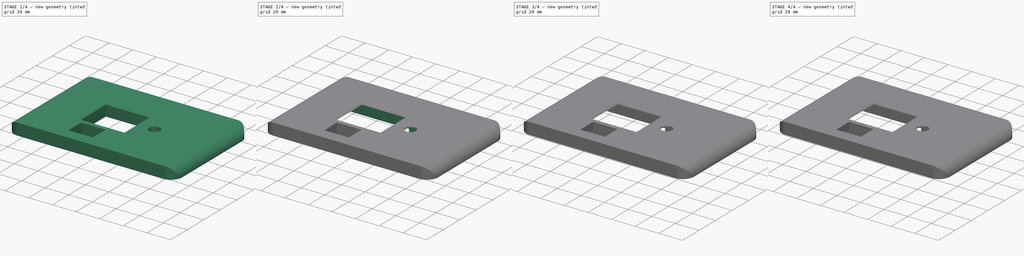
[diagram: build sequence overview — one tinted view per stage of 4, left to right]
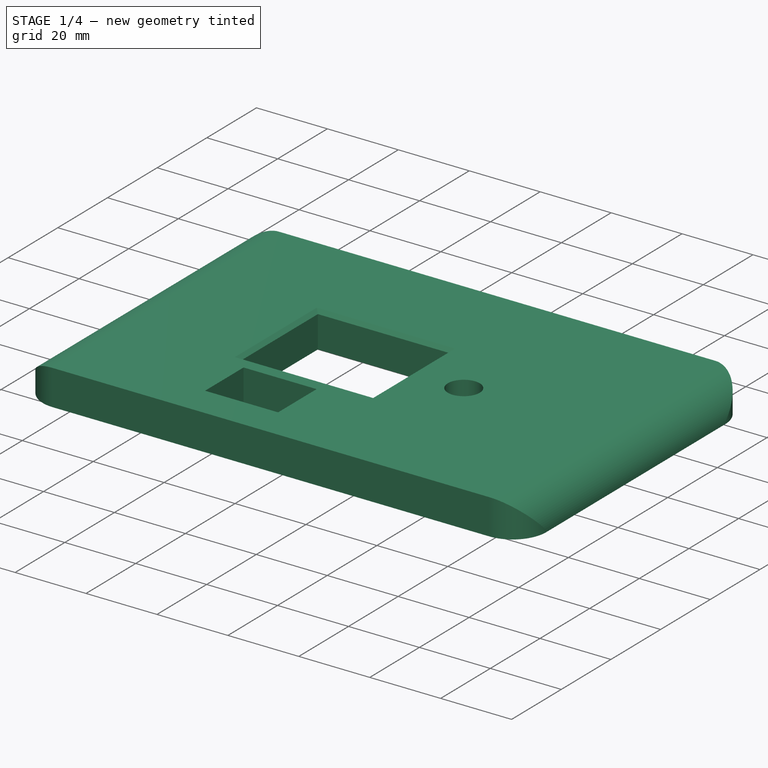
[diagram: stage 1 of 4 — iso view after this stage's code; geometry added in this stage tinted green]
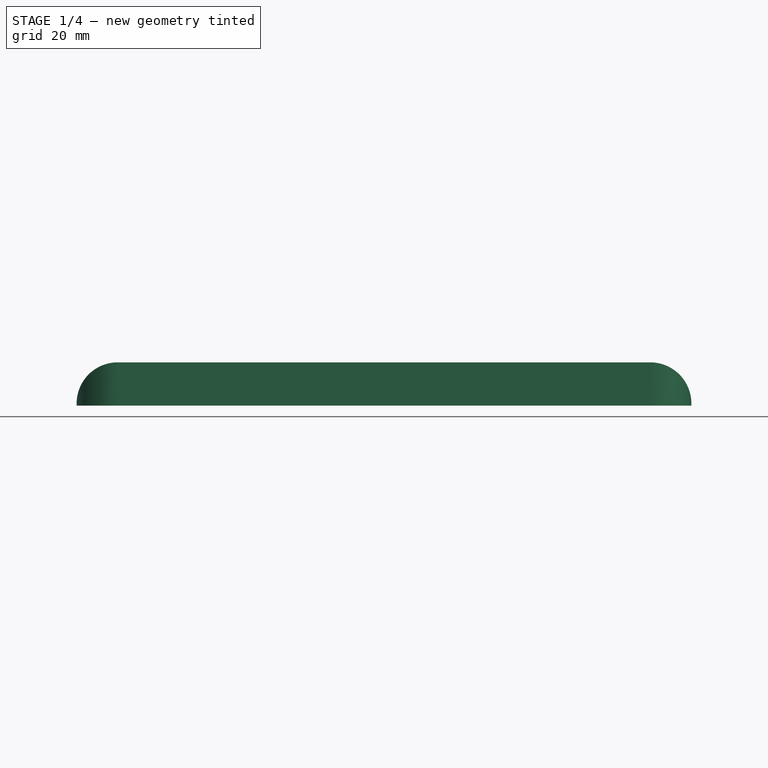
[diagram: stage 1 of 4 — front view after this stage's code; geometry added in this stage tinted green]
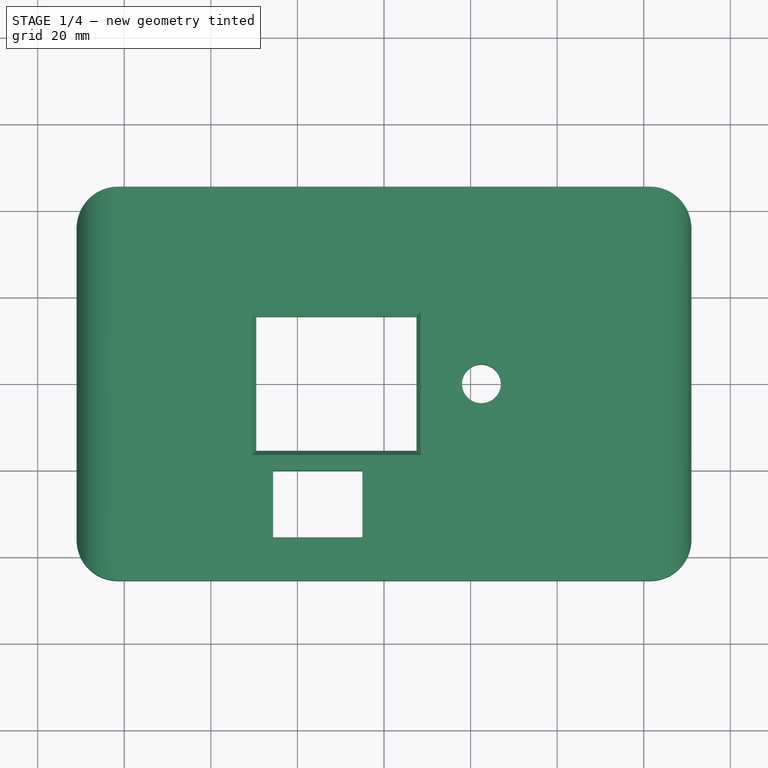
[diagram: stage 1 of 4 — top view after this stage's code; geometry added in this stage tinted green]
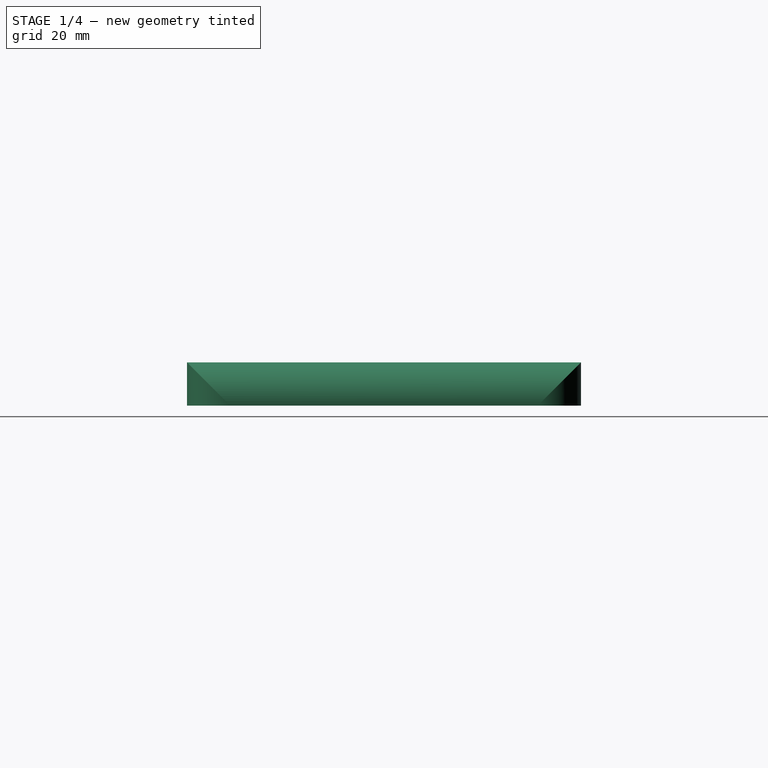
[diagram: stage 1 of 4 — right view after this stage's code; geometry added in this stage tinted green]
FCSTD DOCUMENT  (FreeCAD 0.18.4R)
Label: Domodisp
License: CreativeCommons Attribution-NonCommercial-ShareAlike
LicenseURL: http://creativecommons.org/licenses/by-nc-sa/4.0/
objects: Sketcher::SketchObject×9, PartDesign::Pocket×7, PartDesign::Chamfer×3, PartDesign::Pad×2, PartDesign::Fillet×2, PartDesign::Body×1
note: 33 computed .brp shape members not serialized (recipe doc carries the construction recipe); baked Part::Feature solids carry a one-line shape summary decoded from their .brp

FEATURE [Sketcher::SketchObject] Sketch  label="Sketch fuori tutto"
  MapMode = 49
  sketch-geometry (4):
    g0: LineSegment StartX=-71 StartY=45.5 StartZ=0 EndX=71 EndY=45.5 EndZ=0
    g1: LineSegment StartX=71 StartY=45.5 StartZ=0 EndX=71 EndY=-45.5 EndZ=0
    g2: LineSegment StartX=71 StartY=-45.5 StartZ=0 EndX=-71 EndY=-45.5 EndZ=0
    g3: LineSegment StartX=-71 StartY=-45.5 StartZ=0 EndX=-71 EndY=45.5 EndZ=0
  constraints (11):
    c: Coincident(g0,g1)
    c: Coincident(g1,g2)
    c: Coincident(g2,g3)
    c: Coincident(g3,g0)
    c: Horizontal(g0)
    c: Horizontal(g2)
    c: Vertical(g1)
    c: Vertical(g3)
    c: DistanceX(g0,g0) = 142
    c: DistanceY(g3,g3) = 91
    c: Symmetric(g0,g2,g-1)
FEATURE [PartDesign::Pad] Pad  label="Fuori tutto"
  Length = 10
  Length2 = 100
  Profile = -> Sketch
  Type = 0
FEATURE [PartDesign::Fillet] Fillet
  Base = -> Pad [Edge2,Edge7,Edge5,Edge8,Edge12,Edge1]
  BaseFeature = -> Pad
  Radius = 9.5
FEATURE [Sketcher::SketchObject] Sketch001
  MapMode = 5
  Placement = pos=(0,0,10) rot=(0,0,1;0rad)
  Support = -> [Fillet]
  sketch-geometry (9):
    g0: LineSegment StartX=-29.5 StartY=15.5 StartZ=0 EndX=7.5 EndY=15.5 EndZ=0
    g1: LineSegment StartX=7.5 StartY=15.5 StartZ=0 EndX=7.5 EndY=-15.5 EndZ=0
    g2: LineSegment StartX=7.5 StartY=-15.5 StartZ=0 EndX=-29.5 EndY=-15.5 EndZ=0
    g3: LineSegment StartX=-29.5 StartY=-15.5 StartZ=0 EndX=-29.5 EndY=15.5 EndZ=0
    g4: Circle CenterX=22.5 CenterY=0 CenterZ=0 NormalX=0 NormalY=0 NormalZ=1 AngleXU=0 Radius=4.5
    g5: LineSegment StartX=-25.6 StartY=-20 StartZ=0 EndX=-5 EndY=-20 EndZ=0
    g6: LineSegment StartX=-5 StartY=-20 StartZ=0 EndX=-5 EndY=-35.5 EndZ=0
    g7: LineSegment StartX=-5 StartY=-35.5 StartZ=0 EndX=-25.6 EndY=-35.5 EndZ=0
    g8: LineSegment StartX=-25.6 StartY=-35.5 StartZ=0 EndX=-25.6 EndY=-20 EndZ=0
  constraints (26):
    c: Coincident(g0,g1)
    c: Coincident(g1,g2)
    c: Coincident(g2,g3)
    c: Coincident(g3,g0)
    c: Horizontal(g0)
    c: Horizontal(g2)
    c: Vertical(g3)
    c: DistanceY(g3,g3) = 31
    c: DistanceX(g2,g2) = 37
    c: PointOnObject(g4,g-1)
    c: Diameter(g4) = 9
    c: Symmetric(g0,g1,g-1)
    c: Coincident(g5,g6)
    c: Coincident(g6,g7)
    c: Coincident(g7,g8)
    c: Coincident(g8,g5)
    c: Horizontal(g5)
    c: Horizontal(g7)
    c: Vertical(g6)
    c: Vertical(g8)
    c: DistanceY(g6,g6) = 15.5
    c: DistanceX(g7,g7) = 20.6
    c: DistanceY(g5,g-1) = 20
    c: DistanceX(g6,g-1) = 5
    c: DistanceX(g-1,g0) = 7.5
    c: DistanceX(g-1,g4) = 22.5
FEATURE [PartDesign::Pocket] Pocket  label="Fori frontali"
  BaseFeature = -> Fillet
  Length = 10
  Length2 = 100
  Profile = -> Sketch001
  Refine = true
  Type = 0
FEATURE [PartDesign::Chamfer] Chamfer
  Base = -> Pocket [Edge30,Edge29,Edge32,Edge31]
  BaseFeature = -> Pocket
  Size = 1
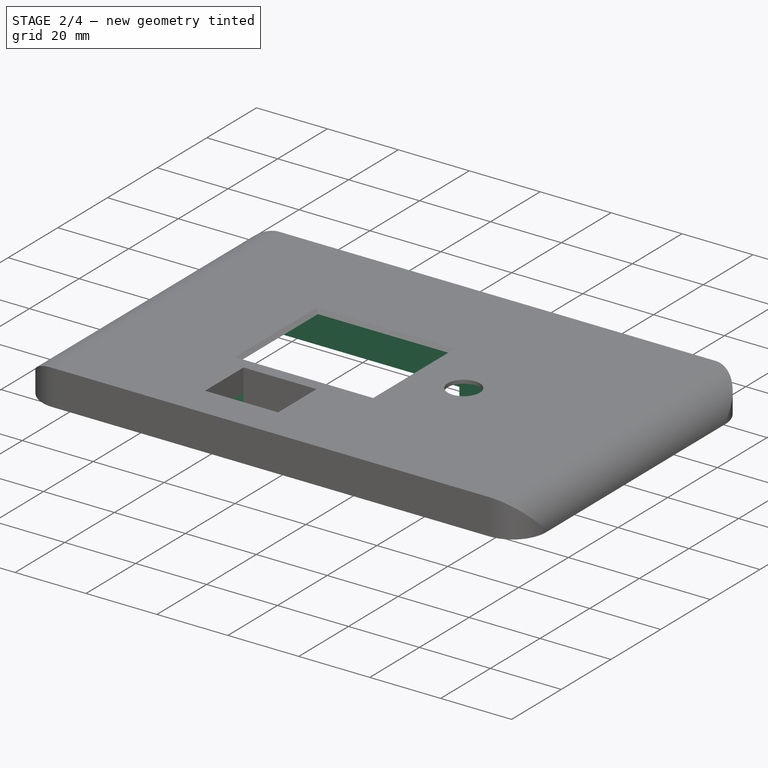
[diagram: stage 2 of 4 — iso view after this stage's code; geometry added in this stage tinted green]
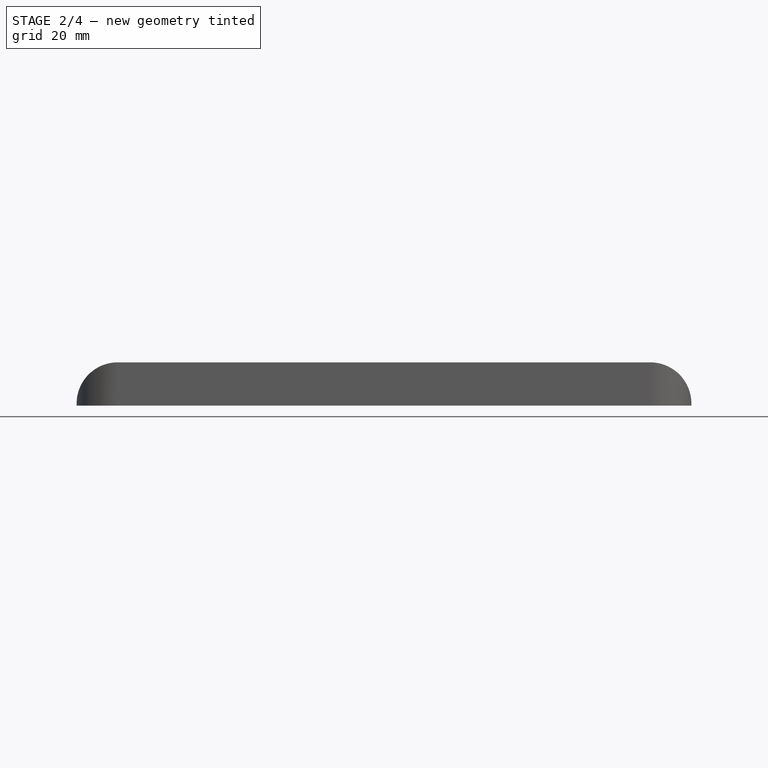
[diagram: stage 2 of 4 — front view after this stage's code; geometry added in this stage tinted green]
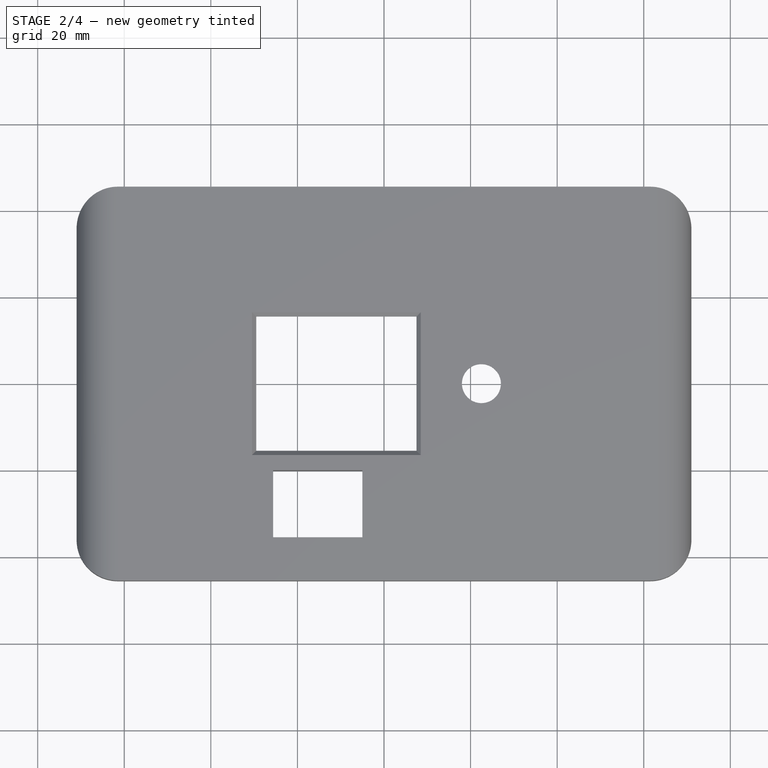
[diagram: stage 2 of 4 — top view after this stage's code; geometry added in this stage tinted green]
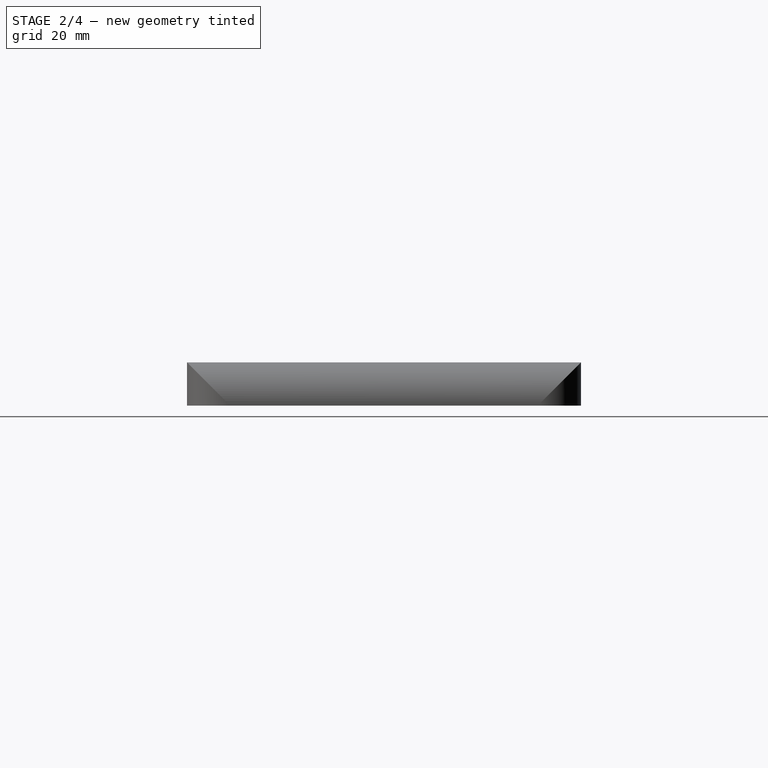
[diagram: stage 2 of 4 — right view after this stage's code; geometry added in this stage tinted green]
FEATURE [Sketcher::SketchObject] Sketch002
  MapMode = 5
  Placement = pos=(0,0,0) rot=(1,0,0;3.14159rad)
  Support = -> [Chamfer]
  sketch-geometry (4):
    g0: LineSegment StartX=-25.6 StartY=35.5 StartZ=0 EndX=-31.1 EndY=32.3246 EndZ=0
    g1: LineSegment StartX=-31.1 StartY=32.3246 StartZ=0 EndX=-31.1 EndY=23.1754 EndZ=0
    g2: LineSegment StartX=-31.1 StartY=23.1754 StartZ=0 EndX=-25.6 EndY=20 EndZ=0
    g3: LineSegment StartX=-25.6 StartY=20 StartZ=0 EndX=-25.6 EndY=35.5 EndZ=0
  constraints (12):
    c: Coincident(g0,g1)
    c: Vertical(g1)
    c: Coincident(g1,g2)
    c: Coincident(g2,g3)
    c: Coincident(g3,g0)
    c: Vertical(g3)
    c: DistanceX(g0,g0) = 5.5
    c: DistanceX(g0,g-1) = 25.6
    c: DistanceY(g-1,g2) = 20
    c: DistanceY(g2,g0) = 15.5
    c: Angle(g3,g2) = 1.0472
    c: Angle(g0,g3) = 1.0472
FEATURE [PartDesign::Pocket] Pocket001  label="Scasso supporto TH"
  BaseFeature = -> Chamfer
  Length = 3.5
  Length2 = 100
  Profile = -> Sketch002
  Refine = true
  Type = 0
FEATURE [Sketcher::SketchObject] Sketch003
  MapMode = 5
  Placement = pos=(0,0,0) rot=(1,0,0;3.14159rad)
  Support = -> [Pocket001]
  sketch-geometry (8):
    g0: LineSegment StartX=-44 StartY=17.5 StartZ=0 EndX=14.6 EndY=17.5 EndZ=0
    g1: LineSegment StartX=14.6 StartY=-17.5 StartZ=0 EndX=-44 EndY=-17.5 EndZ=0
    g2: LineSegment StartX=-44 StartY=-17.5 StartZ=0 EndX=-44 EndY=17.5 EndZ=0
    g3: LineSegment StartX=14.6 StartY=17.5 StartZ=0 EndX=14.6 EndY=9.5 EndZ=0
    g4: LineSegment StartX=14.6 StartY=9.5 StartZ=0 EndX=30.6 EndY=9.5 EndZ=0
    g5: LineSegment StartX=30.6 StartY=9.5 StartZ=0 EndX=30.6 EndY=-9.5 EndZ=0
    g6: LineSegment StartX=30.6 StartY=-9.5 StartZ=0 EndX=14.6 EndY=-9.5 EndZ=0
    g7: LineSegment StartX=14.6 StartY=-9.5 StartZ=0 EndX=14.6 EndY=-17.5 EndZ=0
  constraints (22):
    c: Coincident(g1,g2)
    c: Coincident(g2,g0)
    c: Horizontal(g0)
    c: Horizontal(g1)
    c: Vertical(g2)
    c: Symmetric(g0,g1,g-1)
    c: DistanceX(g1,g-1) = 44
    c: DistanceX(g0,g0) = 58.6
    c: DistanceY(g2,g2) = 35
    c: Coincident(g0,g3)
    c: Vertical(g3)
    c: Coincident(g3,g4)
    c: Horizontal(g4)
    c: Coincident(g4,g5)
    c: Coincident(g5,g6)
    c: Coincident(g6,g7)
    c: Coincident(g7,g1)
    c: Vertical(g7)
    c: Symmetric(g4,g5,g-1)
    c: DistanceX(g4,g4) = 16
    c: Equal(g7,g3)
    c: DistanceY(g7,g7) = 8
FEATURE [Sketcher::SketchObject] Sketch006
  MapMode = 5
  Placement = pos=(0,0,0) rot=(1,0,0;3.14159rad)
  expr: Constraints[29] = 91 - 2 * 8 - 2 * 2
  expr: Constraints[28] = 142 - 2 * 8 - 2 * 2
  sketch-geometry (12):
    g0: LineSegment StartX=-61 StartY=43.5 StartZ=0 EndX=61 EndY=43.5 EndZ=0
    g1: LineSegment StartX=69 StartY=35.5 StartZ=0 EndX=69 EndY=-35.5 EndZ=0
    g2: LineSegment StartX=61 StartY=-43.5 StartZ=0 EndX=-61 EndY=-43.5 EndZ=0
    g3: LineSegment StartX=-69 StartY=-35.5 StartZ=0 EndX=-69 EndY=35.5 EndZ=0
    g4: LineSegment StartX=-51 StartY=37 StartZ=0 EndX=39 EndY=37 EndZ=0
    g5: LineSegment StartX=39 StartY=37 StartZ=0 EndX=39 EndY=-23 EndZ=0
    g6: LineSegment StartX=39 StartY=-23 StartZ=0 EndX=-51 EndY=-23 EndZ=0
    g7: LineSegment StartX=-51 StartY=-23 StartZ=0 EndX=-51 EndY=37 EndZ=0
    g8: ArcOfCircle CenterX=-61 CenterY=35.5 CenterZ=0 NormalX=0 NormalY=0 NormalZ=1 AngleXU=0 Radius=8 StartAngle=1.5708 EndAngle=3.14159
    g9: ArcOfCircle CenterX=-61 CenterY=-35.5 CenterZ=0 NormalX=0 NormalY=0 NormalZ=1 AngleXU=0 Radius=8 StartAngle=3.14159 EndAngle=4.71239
    g10: ArcOfCircle CenterX=61 CenterY=-35.5 CenterZ=0 NormalX=0 NormalY=0 NormalZ=1 AngleXU=0 Radius=8 StartAngle=4.71239 EndAngle=6.28319
    g11: ArcOfCircle CenterX=61 CenterY=35.5 CenterZ=0 NormalX=0 NormalY=0 NormalZ=1 AngleXU=0 Radius=8 StartAngle=0 EndAngle=1.5708
  constraints (31):
    c: Horizontal(g2)
    c: Vertical(g1)
    c: Coincident(g4,g5)
    c: Coincident(g5,g6)
    c: Coincident(g6,g7)
    c: Coincident(g7,g4)
    c: Horizontal(g4)
    c: Vertical(g5)
    c: DistanceX(g6,g-1) = 51
    c: DistanceX(g-1,g5) = 39
    c: DistanceY(g5,g-1) = 23
    c: Vertical(g7)
    c: DistanceY(g-1,g4) = 37
    c: Horizontal(g6)
    c: Tangent(g0,g8) = 1.5708
    c: Tangent(g3,g8) = 1.5708
    c: Tangent(g3,g9) = 1.5708
    c: Tangent(g2,g9) = 1.5708
    c: Tangent(g1,g10) = 1.5708
    c: Tangent(g2,g10) = 1.5708
    c: Tangent(g1,g11) = 1.5708
    c: Tangent(g0,g11) = 1.5708
    c: Radius(g8) = 8
    c: Equal(g8,g9)
    c: Equal(g9,g10)
    c: Equal(g10,g11)
    c: Horizontal(g0)
    c: Vertical(g3)
    c: DistanceX(g8,g11) = 122
    c: DistanceY(g9,g8) = 71
    c: Symmetric(g8,g10,g-1)
FEATURE [Sketcher::SketchObject] Sketch007
  MapMode = 5
  Placement = pos=(0,0,0) rot=(1,0,0;3.14159rad)
  Support = -> [Pocket001]
  expr: Constraints[11] = 20 + 15.5 / 2 - 12 / 2
  sketch-geometry (4):
    g0: LineSegment StartX=-5 StartY=33.75 StartZ=0 EndX=5 EndY=33.75 EndZ=0
    g1: LineSegment StartX=5 StartY=33.75 StartZ=0 EndX=5 EndY=21.75 EndZ=0
    g2: LineSegment StartX=5 StartY=21.75 StartZ=0 EndX=-5 EndY=21.75 EndZ=0
    g3: LineSegment StartX=-5 StartY=21.75 StartZ=0 EndX=-5 EndY=33.75 EndZ=0
  constraints (12):
    c: Coincident(g0,g1)
    c: Coincident(g1,g2)
    c: Coincident(g2,g3)
    c: Coincident(g3,g0)
    c: Horizontal(g0)
    c: Horizontal(g2)
    c: Vertical(g1)
    c: Vertical(g3)
    c: DistanceX(g2,g-1) = 5
    c: DistanceX(g0,g0) = 10
    c: DistanceY(g1,g1) = 12
    c: DistanceY(g-1,g2) = 21.75
FEATURE [PartDesign::Pocket] Pocket004  label="Scasso contatti TH"
  BaseFeature = -> Pocket001
  Length = 5
  Length2 = 100
  Profile = -> Sketch007
  Refine = true
  Type = 0
FEATURE [PartDesign::Pocket] Pocket002  label="Scassi disp e enc"
  BaseFeature = -> Pocket004
  Length = 9
  Length2 = 100
  Profile = -> Sketch003
  Refine = true
  Type = 0
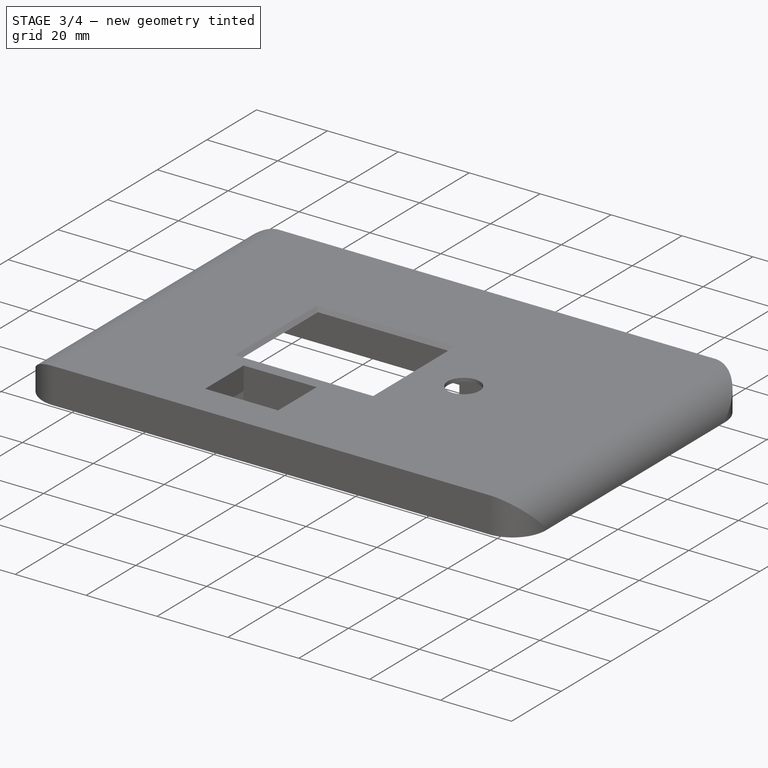
[diagram: stage 3 of 4 — iso view after this stage's code; geometry added in this stage tinted green]
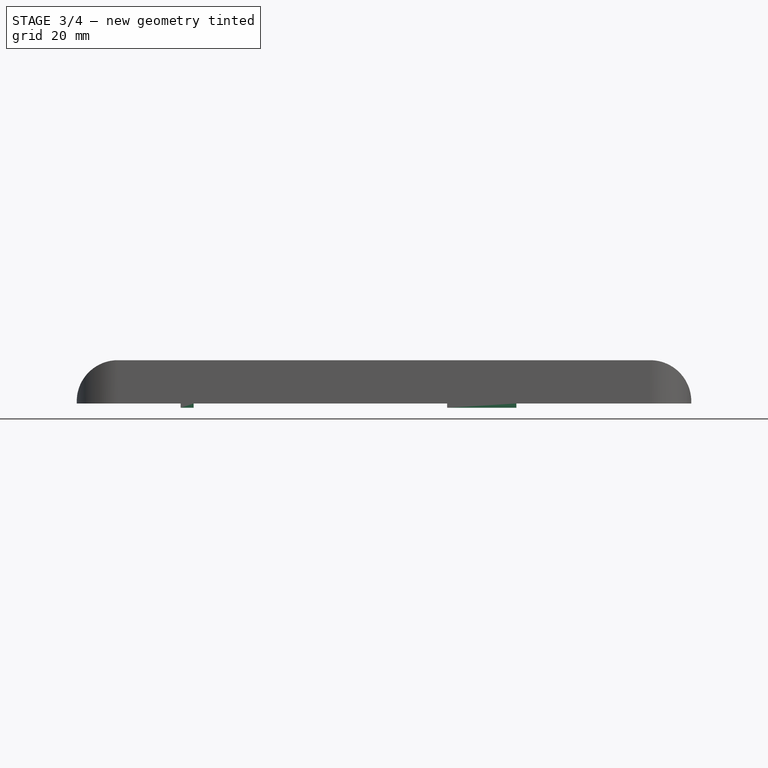
[diagram: stage 3 of 4 — front view after this stage's code; geometry added in this stage tinted green]
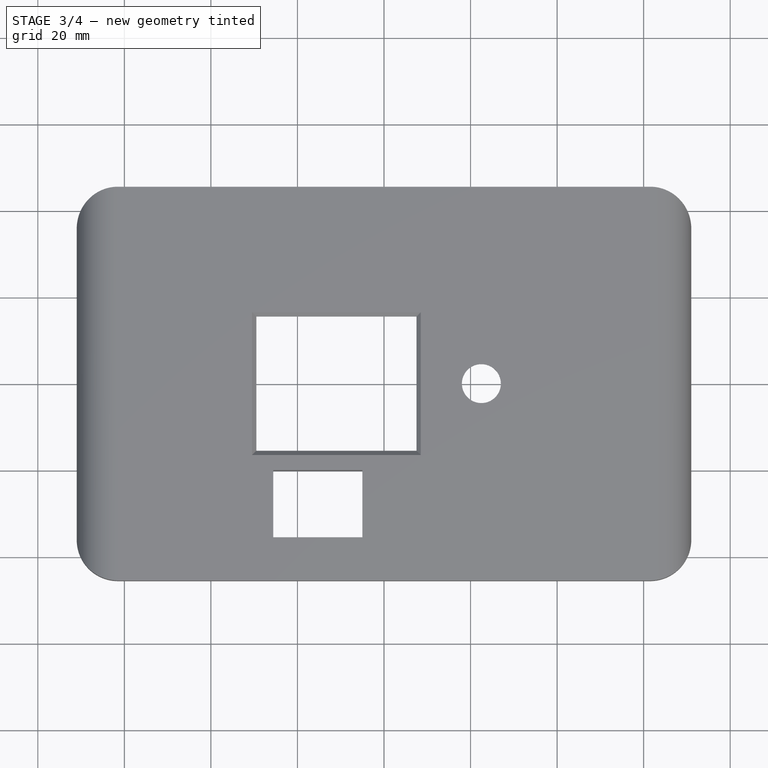
[diagram: stage 3 of 4 — top view after this stage's code; geometry added in this stage tinted green]
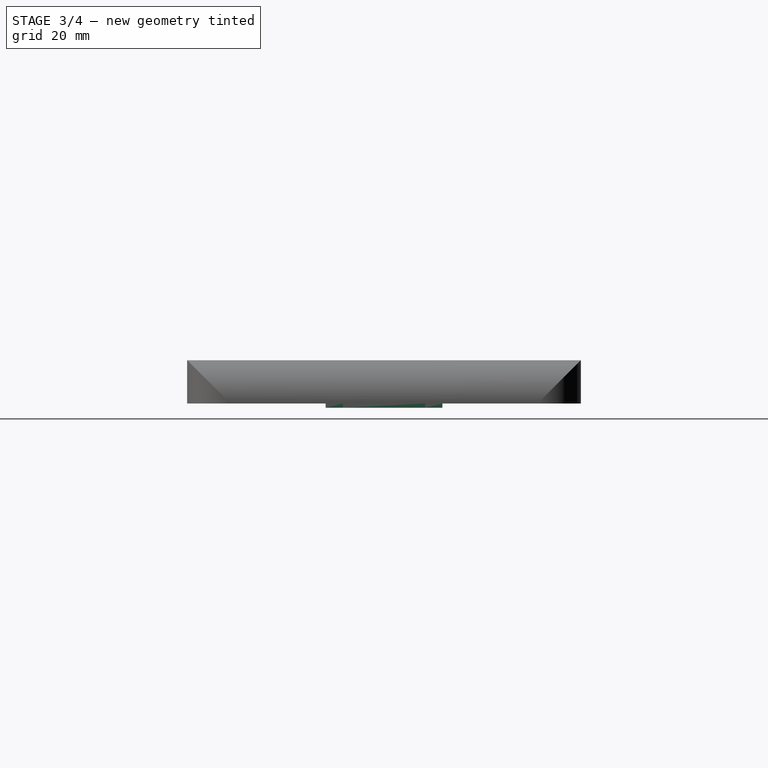
[diagram: stage 3 of 4 — right view after this stage's code; geometry added in this stage tinted green]
FEATURE [Sketcher::SketchObject] Sketch004
  MapMode = 5
  Placement = pos=(0,0,9) rot=(1,0,0;3.14159rad)
  Support = -> [Pocket002]
  expr: Constraints[19] = 58.6 - 44
  sketch-geometry (12):
    g0: LineSegment StartX=14.6 StartY=13.5 StartZ=0 EndX=30.6 EndY=13.5 EndZ=0
    g1: LineSegment StartX=30.6 StartY=13.5 StartZ=0 EndX=30.6 EndY=9.5 EndZ=0
    g2: LineSegment StartX=30.6 StartY=9.5 StartZ=0 EndX=14.6 EndY=9.5 EndZ=0
    g3: LineSegment StartX=14.6 StartY=9.5 StartZ=0 EndX=14.6 EndY=13.5 EndZ=0
    g4: LineSegment StartX=14.6 StartY=-9.5 StartZ=0 EndX=30.6 EndY=-9.5 EndZ=0
    g5: LineSegment StartX=30.6 StartY=-9.5 StartZ=0 EndX=30.6 EndY=-13.5 EndZ=0
    g6: LineSegment StartX=30.6 StartY=-13.5 StartZ=0 EndX=14.6 EndY=-13.5 EndZ=0
    g7: LineSegment StartX=14.6 StartY=-13.5 StartZ=0 EndX=14.6 EndY=-9.5 EndZ=0
    g8: LineSegment StartX=-47 StartY=9.5 StartZ=0 EndX=-44 EndY=9.5 EndZ=0
    g9: LineSegment StartX=-44 StartY=9.5 StartZ=0 EndX=-44 EndY=-9.5 EndZ=0
    g10: LineSegment StartX=-44 StartY=-9.5 StartZ=0 EndX=-47 EndY=-9.5 EndZ=0
    g11: LineSegment StartX=-47 StartY=-9.5 StartZ=0 EndX=-47 EndY=9.5 EndZ=0
  constraints (34):
    c: Coincident(g0,g1)
    c: Coincident(g1,g2)
    c: Coincident(g2,g3)
    c: Coincident(g3,g0)
    c: Horizontal(g0)
    c: Horizontal(g2)
    c: Vertical(g1)
    c: Vertical(g3)
    c: Coincident(g4,g5)
    c: Coincident(g5,g6)
    c: Coincident(g6,g7)
    c: Coincident(g7,g4)
    c: Horizontal(g4)
    c: Horizontal(g6)
    c: Vertical(g5)
    c: Vertical(g7)
    c: Equal(g1,g5)
    c: Symmetric(g1,g4,g-1)
    c: Equal(g2,g4)
    c: DistanceX(g-1,g4) = 14.6
    c: DistanceY(g4,g2) = 19
    c: DistanceY(g7,g7) = 4
    c: DistanceX(g2,g2) = 16
    c: Coincident(g8,g9)
    c: Coincident(g9,g10)
    c: Coincident(g10,g11)
    c: Coincident(g11,g8)
    c: Horizontal(g8)
    c: Horizontal(g10)
    c: Vertical(g11)
    c: Symmetric(g8,g9,g-1)
    c: DistanceX(g10,g10) = 3
    c: DistanceY(g10,g8) = 19
    c: DistanceX(g9,g-1) = 44
FEATURE [PartDesign::Pad] Pad001  label="Distanziali display"
  BaseFeature = -> Pocket002
  Length = 10
  Length2 = 100
  Profile = -> Sketch004
  Refine = true
  Type = 0
FEATURE [PartDesign::Pocket] Pocket003  label="Scasso guscio"
  BaseFeature = -> Pad001
  Length = 6
  Length2 = 100
  Profile = -> Sketch006
  Refine = true
  Type = 0
FEATURE [Sketcher::SketchObject] Sketch008
  MapMode = 5
  Placement = pos=(39,0,0) rot=(0.57735,0.57735,0.57735;2.0944rad)
  sketch-geometry (4):
    g0: LineSegment StartX=-17 StartY=3 StartZ=0 EndX=3 EndY=3 EndZ=0
    g1: LineSegment StartX=3 StartY=3 StartZ=0 EndX=3 EndY=1 EndZ=0
    g2: LineSegment StartX=3 StartY=1 StartZ=0 EndX=-17 EndY=1 EndZ=0
    g3: LineSegment StartX=-17 StartY=1 StartZ=0 EndX=-17 EndY=3 EndZ=0
  constraints (12):
    c: Coincident(g0,g1)
    c: Coincident(g1,g2)
    c: Coincident(g2,g3)
    c: Coincident(g3,g0)
    c: Horizontal(g2)
    c: Vertical(g1)
    c: Vertical(g3)
    c: DistanceX(g2,g2) = 20
    c: DistanceY(g1,g1) = 2
    c: DistanceY(g-1,g2) = 1
    c: Horizontal(g0)
    c: DistanceX(g-1,g1) = 3
FEATURE [PartDesign::Fillet] Fillet001  label="Rinforzo guscio"
  Base = -> Pocket003 [Edge141,Edge143,Edge144,Edge139,Edge131,Edge133,Edge135,Edge137]
  BaseFeature = -> Pocket003
  Radius = 3
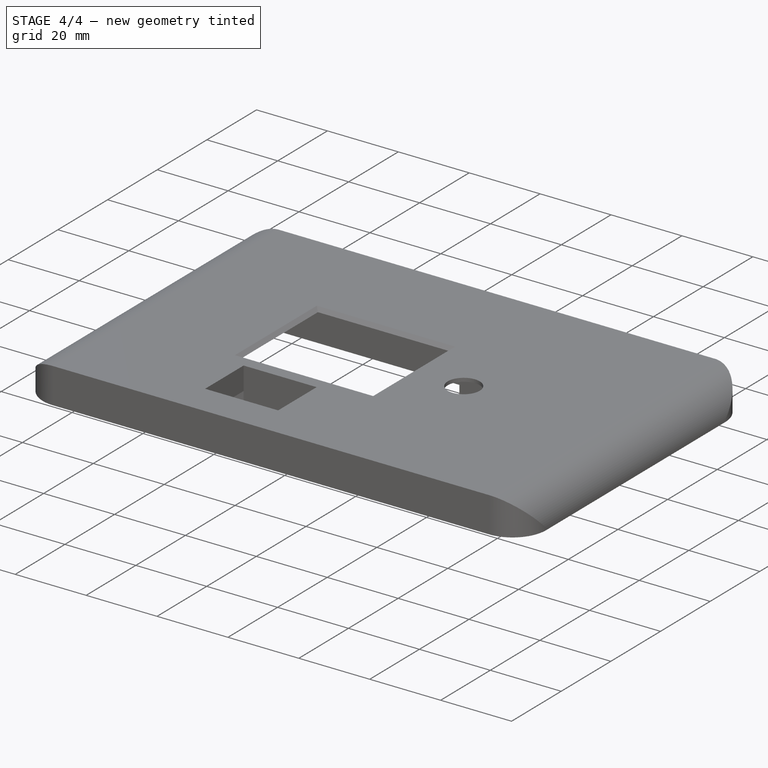
[diagram: stage 4 of 4 — iso view after this stage's code; geometry added in this stage tinted green]
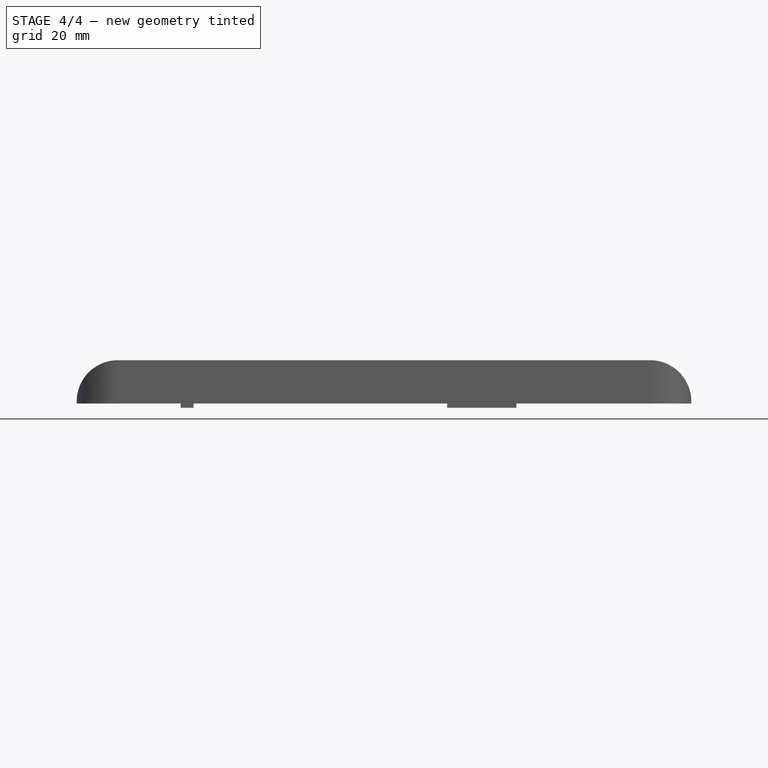
[diagram: stage 4 of 4 — front view after this stage's code; geometry added in this stage tinted green]
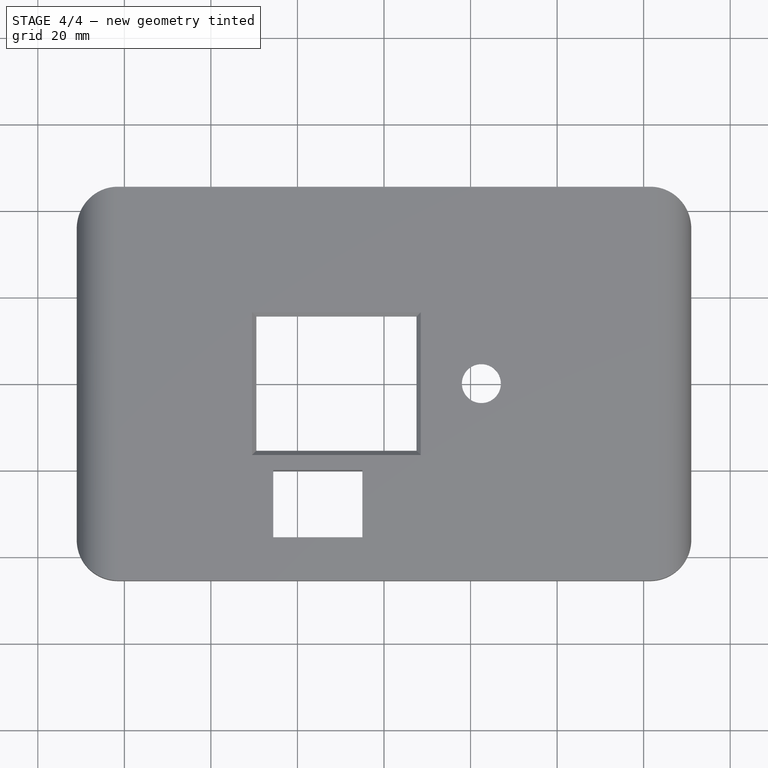
[diagram: stage 4 of 4 — top view after this stage's code; geometry added in this stage tinted green]
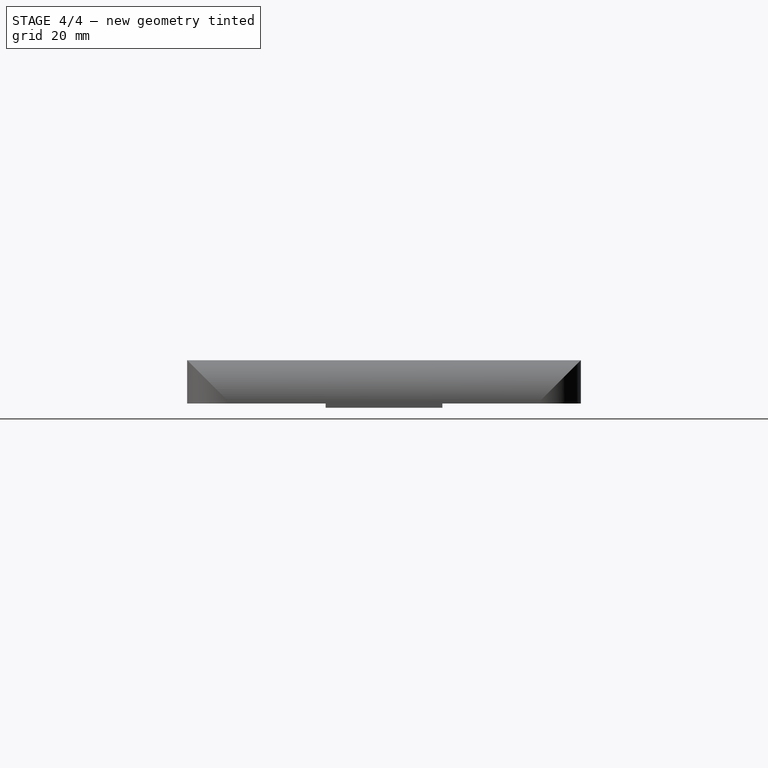
[diagram: stage 4 of 4 — right view after this stage's code; geometry added in this stage tinted green]
FEATURE [PartDesign::Pocket] Pocket005  label="Incastro dx"
  BaseFeature = -> Fillet001
  Length = 2
  Length2 = 100
  Profile = -> Sketch008
  Refine = true
  Type = 0
FEATURE [PartDesign::Chamfer] Chamfer001  label="Smusso incastro dx"
  Base = -> Pocket005 [Edge122,Edge118]
  BaseFeature = -> Pocket005
  Size = 0.99
FEATURE [Sketcher::SketchObject] Sketch009
  MapMode = 5
  Placement = pos=(-51,0,0) rot=(0.57735,-0.57735,-0.57735;2.0944rad)
  Support = -> [Chamfer001]
  sketch-geometry (4):
    g0: LineSegment StartX=-3 StartY=3 StartZ=0 EndX=17 EndY=3 EndZ=0
    g1: LineSegment StartX=17 StartY=3 StartZ=0 EndX=17 EndY=1 EndZ=0
    g2: LineSegment StartX=17 StartY=1 StartZ=0 EndX=-3 EndY=1 EndZ=0
    g3: LineSegment StartX=-3 StartY=1 StartZ=0 EndX=-3 EndY=3 EndZ=0
  constraints (12):
    c: Coincident(g0,g1)
    c: Coincident(g1,g2)
    c: Coincident(g2,g3)
    c: Coincident(g3,g0)
    c: Horizontal(g0)
    c: Horizontal(g2)
    c: Vertical(g1)
    c: Vertical(g3)
    c: DistanceX(g2,g-1) = 3
    c: DistanceX(g0,g0) = 20
    c: DistanceY(g1,g1) = 2
    c: DistanceY(g-1,g2) = 1
FEATURE [PartDesign::Pocket] Pocket006  label="Incastro sx"
  BaseFeature = -> Chamfer001
  Length = 2
  Length2 = 100
  Profile = -> Sketch009
  Refine = true
  Type = 0
FEATURE [PartDesign::Chamfer] Chamfer002  label="Smusso incastro sx"
  Base = -> Pocket006 [Edge141,Edge145]
  BaseFeature = -> Pocket006
  Size = 0.99
FEATURE [PartDesign::Body] Body
  Group = -> [Sketch,Pad,Fillet,Sketch001,Pocket,Chamfer,Sketch002,Pocket001,Sketch003,Sketch007,Pocket004,Pocket002,Sketch004,Pad001,Sketch006,Pocket003,Sketch008,Fillet001,Pocket005,Chamfer001,Sketch009,Pocket006,Chamfer002]
  Origin = -> Origin
  Tip = -> Chamfer002
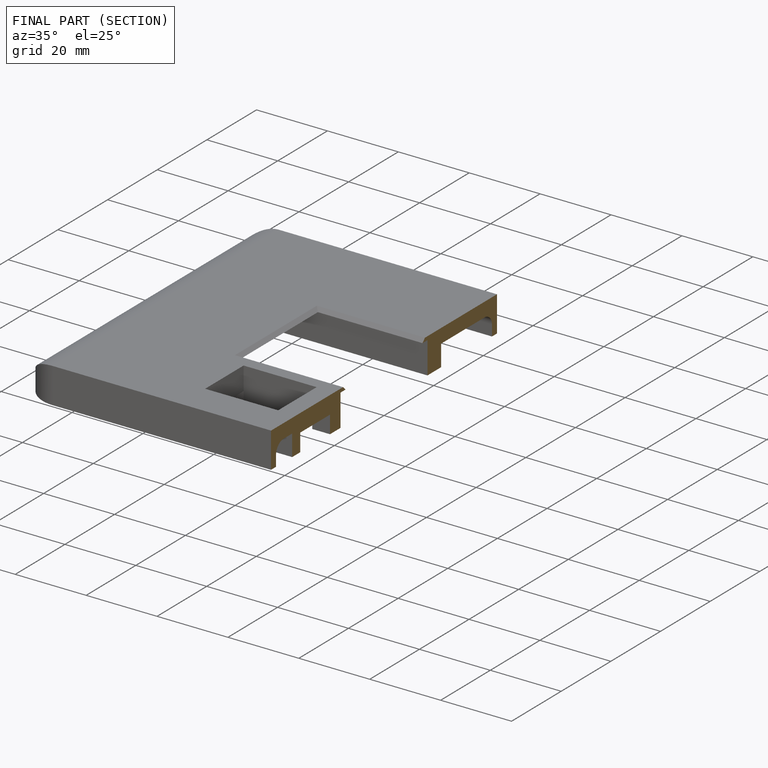
[diagram: finished part — half-section view (interior)]
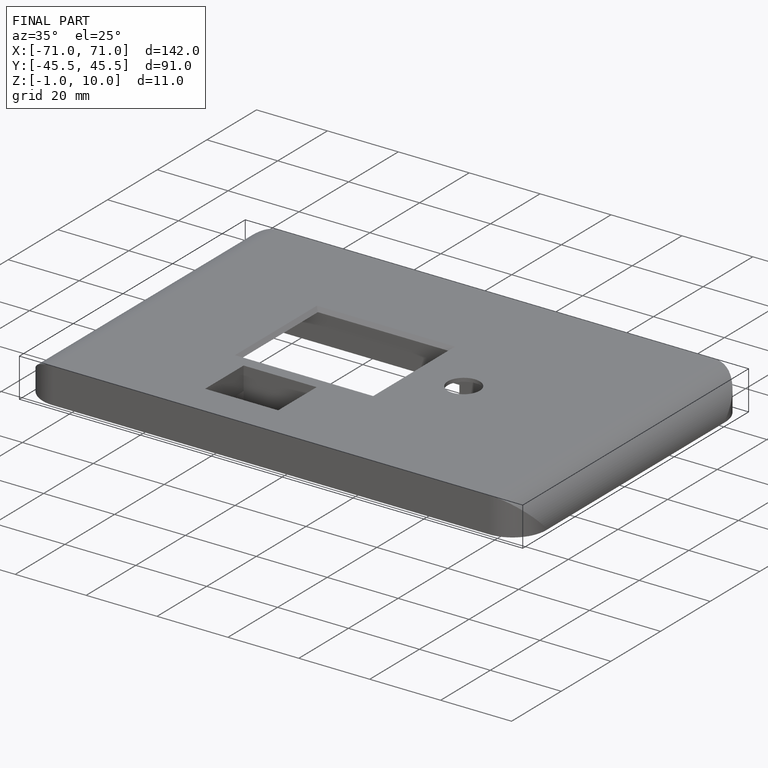
[diagram: finished part — iso view with bounding-box wireframe]
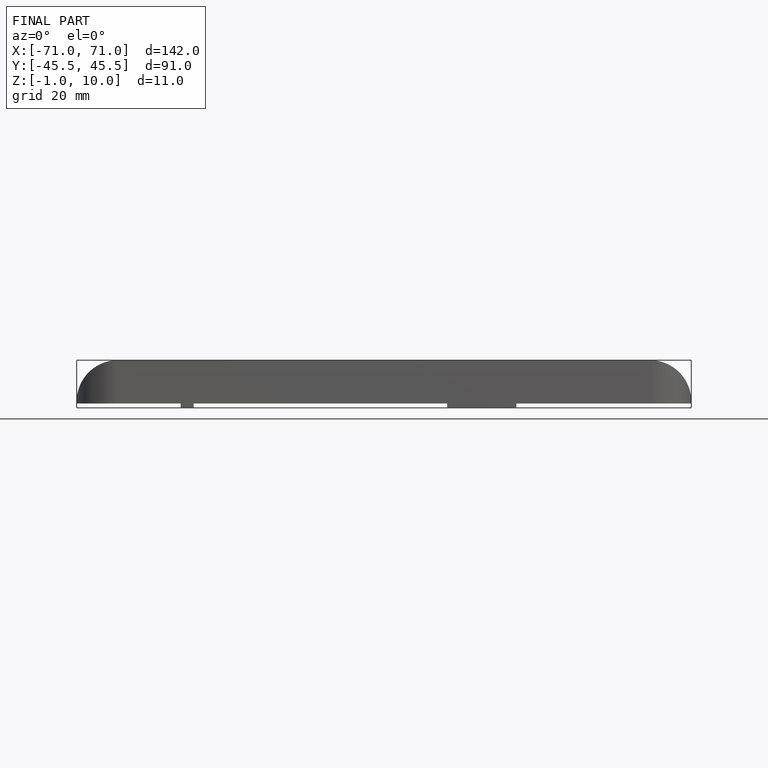
[diagram: finished part — front view with bounding-box wireframe]
